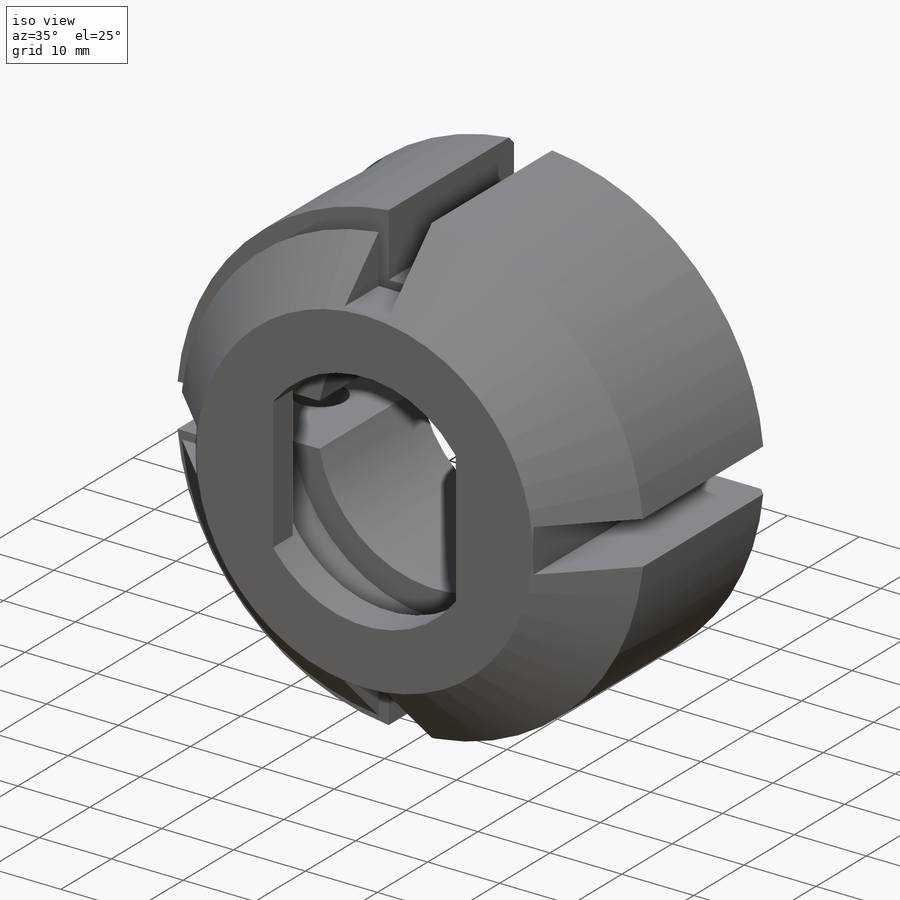
[diagram: iso view]
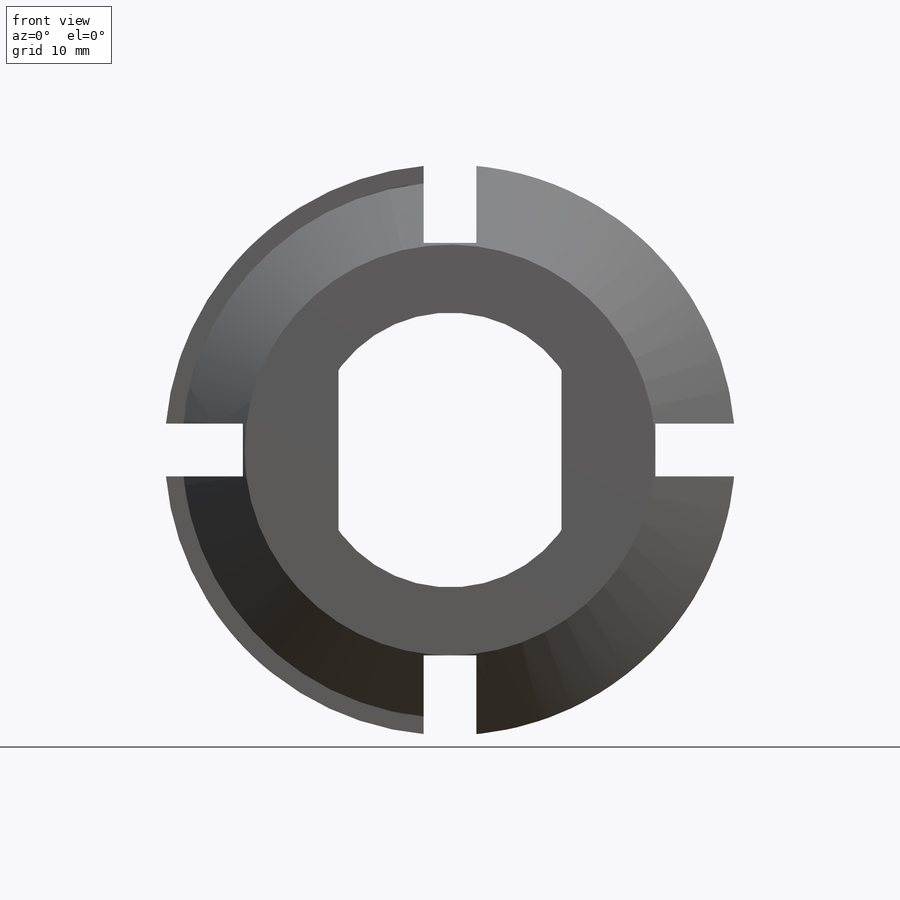
[diagram: front view]
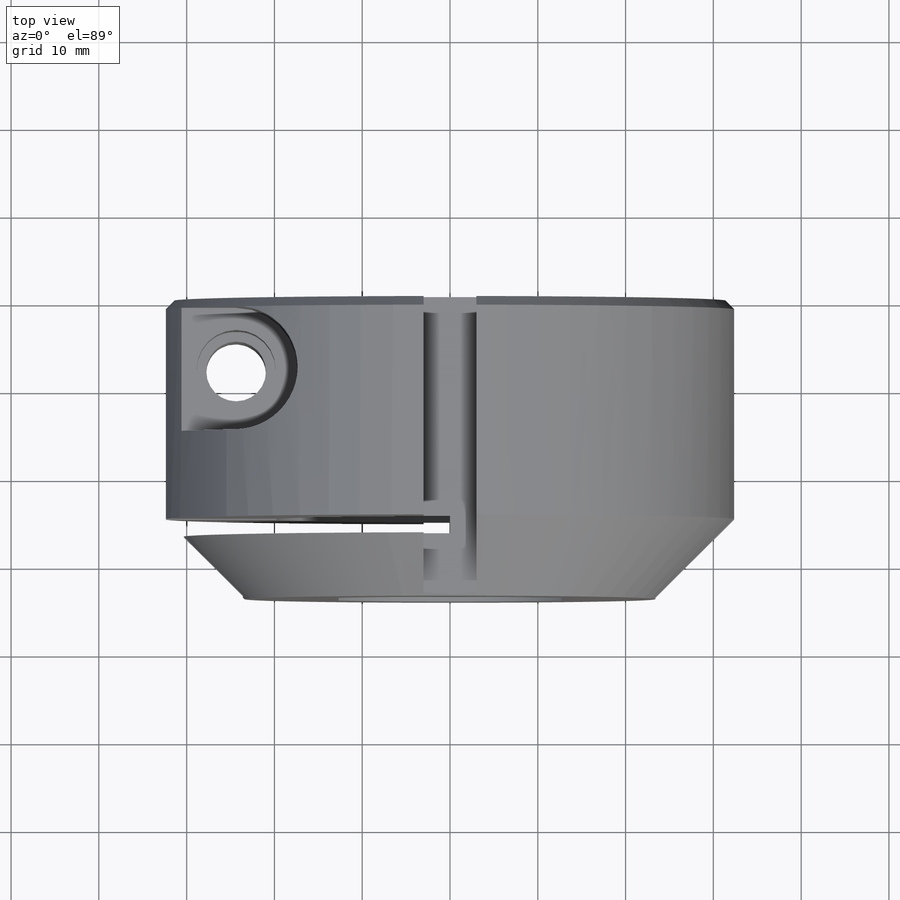
[diagram: top view]
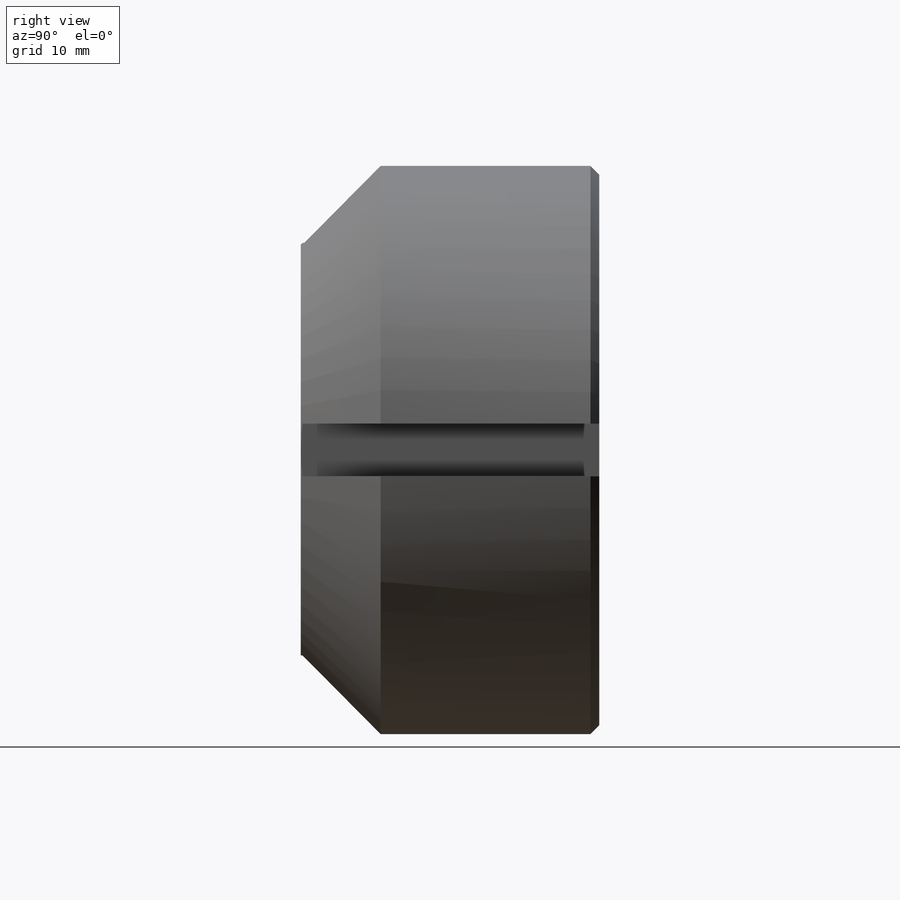
[diagram: right view]
SOLIDWORKS PART (.sldprt)
format: sldprt  version: not decoded by parser v0  size: 449,536 bytes
history: native  units: mm
features: sketch x12, cut_extrude x6, plane x3, chamfer x2, thread x2, hole x2, material x1, extrude x1 (+10 scaffold rows collapsed)
feature tree (39):
  scaffold x10  (default folders/planes/origin — collapsed)
  material  "Materiał <nieokreślony>"
  plane  "Płaszczyzna przednia"
  plane  "Płaszczyzna górna"
  plane  "Płaszczyzna prawa"
  sketch  "Szkic1"  dims[D1=65.0mm D2=31.3mm D3=25.4mm D4=12.7mm D5=6.0mm D6=6.0mm D7=6.0mm D8=6.0mm D9=47.0mm D10=47.0mm D11=23.6mm D12=23.6mm]
  extrude  "Dodanie-wyciągnięcie1"  Depth=34mm
  chamfer  "Sfazowanie1"  Distance=9.1mm Angle=45deg
  sketch  "Szkic2"  dims[D1=2.0mm D2=9.1mm]
  cut_extrude  "Wytnij-wyciągnięcie1"  Depth=70mm
  sketch  "Szkic3"  dims[D1=32.7mm]
  cut_extrude  "Wytnij-wyciągnięcie2"  [1 undecoded]
  thread  "Oznaczenie gwintu1"  Diameter=36mm  [1 undecoded]
  sketch  "Szkic4"  dims[D1=~18.676788mm]
  cut_extrude  "Wytnij-wyciągnięcie3"  Depth=9.1mm
  sketch  "Szkic5"  dims[c1.D1=48.65mm c1.D3=50.0mm c1.D4=8.5mm c1.D5=8.5mm c2.D1=~41.325759mm c3.D1=30.0deg c3.D2=~44.846599mm c4.D2=30.0deg c4.D3=25.0mm c4.D6=25.0mm c4.D7=25.0mm]
  hole  "Otwór Ø8.5 (8.5)1"  [1 undecoded]
  sketch  "Szkic7"
  sketch  "Szkic6"  dims[hole-wizard template sketch: 46 standard entries collapsed; hole parameters kept: c15.Średnica otworu=8.5mm c15.Głębokość otworu=19.0mm c15.D3=~14.816244mm c15.Kąt wiertła=140.0deg]
  sketch  "Szkic8"
  cut_extrude  "Wytnij-wyciągnięcie4"  [1 undecoded]
  sketch  "Szkic9"  dims[D3=~3.929787mm D1=8.0mm D2=8.0mm]
  cut_extrude  "Wytnij-wyciągnięcie5"  Depth=30mm
  sketch  "Szkic10"  dims[D1=9.0mm]
  cut_extrude  "Wytnij-wyciągnięcie6"  Depth=10mm
  hole  "Otwór gwintowany M81"  [1 undecoded]
  sketch  "Szkic12"
  sketch  "Szkic13"  dims[hole-wizard template sketch: 46 standard entries collapsed; hole parameters kept: c15.Średnica wiertła gwintu=6.8mm c15.Głębokość otworu gwintowanego=46.25mm c15.D3=~14.816244mm c15.Kąt wiertła=118.0deg]
  thread  "Gwint otworu1"  Diameter=35.836995mm  [1 undecoded]
  chamfer  "Sfazowanie2"  Distance=1mm Angle=45deg
decode coverage: 18 of 25 modeling features carry decoded parameters
note: ~ marks probable driven/reference dimensions
note: 6 parameter values undecoded
summary: no parameter record found for 4 features
note: suppression state not decoded; provenance and decode notes live in map.json
